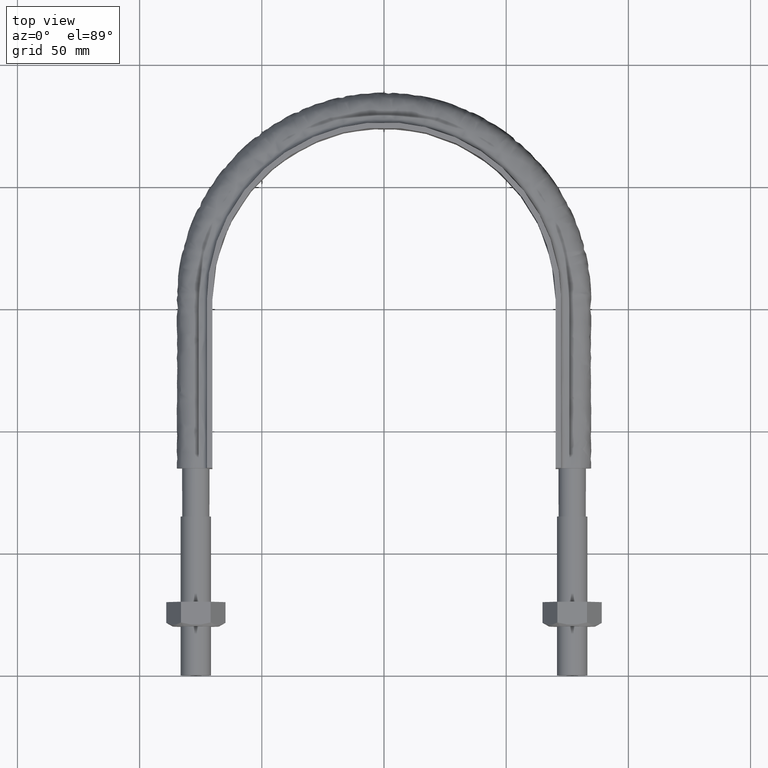
[diagram: clean part render]
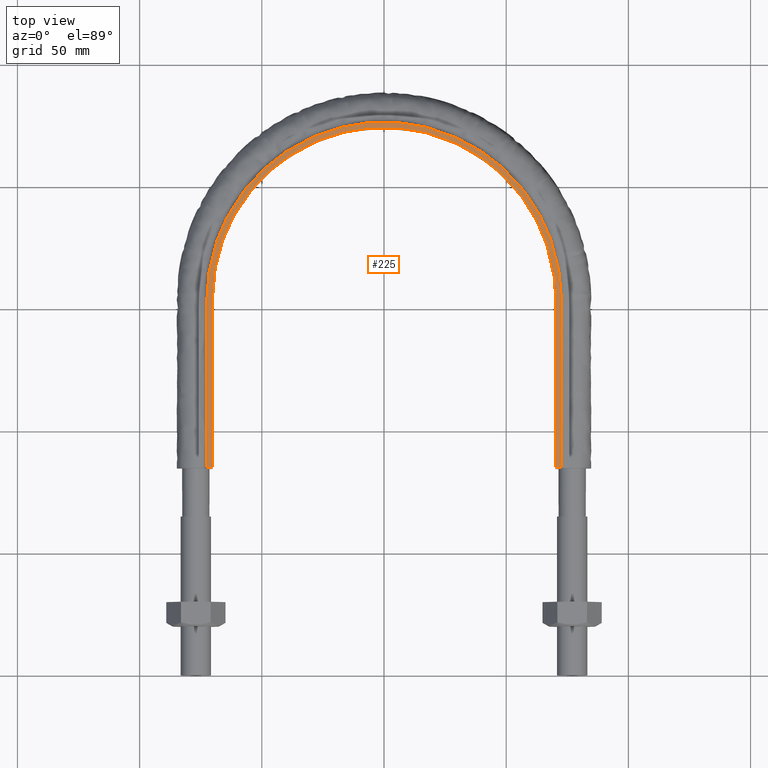
[diagram: same view with one face highlighted and labeled with its STEP entity id]
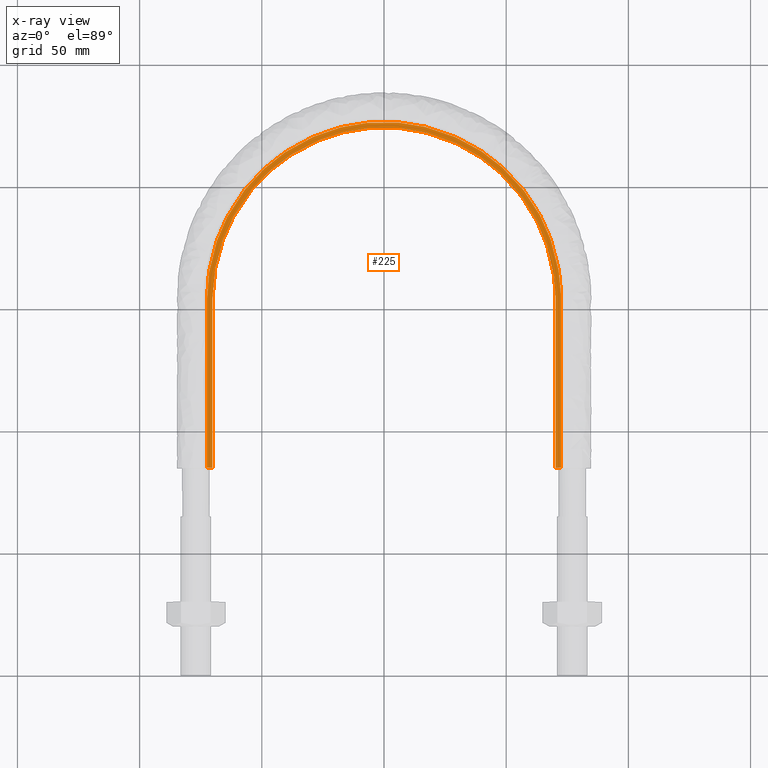
[diagram: x-ray of the same camera — body ghosted, the highlighted face saturated]
A machine part, top view. The second image highlights one B-rep face of the part: STEP entity #225.
The next image is the same camera in x-ray: the body ghosted, the highlighted face saturated — about 0% of this face is hidden behind the body in this view.
In plain terms, the highlighted planar face has unit normal (0, 0, 1).
Its self-contained STEP definition (entity closure, byte-faithful):
#225 = ADVANCED_FACE( '', ( #275 ), #276, .T. );
#275 = FACE_OUTER_BOUND( '', #1048, .T. );
#276 = PLANE( '', #1049 );
#1048 = EDGE_LOOP( '', ( #1360, #1361, #1362, #1363 ) );
#1049 = AXIS2_PLACEMENT_3D( '', #1364, #1365, #1366 );
#1360 = ORIENTED_EDGE( '', *, *, #1600, .T. );
#1361 = ORIENTED_EDGE( '', *, *, #1608, .T. );
#1362 = ORIENTED_EDGE( '', *, *, #1611, .T. );
#1363 = ORIENTED_EDGE( '', *, *, #1612, .F. );
#1364 = CARTESIAN_POINT( '', ( 100.000000000000, 284.710000000000, 15.0000000000000 ) );
#1365 = DIRECTION( '', ( 0.000000000000000, 0.000000000000000, 1.00000000000000 ) );
#1366 = DIRECTION( '', ( 1.00000000000000, 0.000000000000000, 0.000000000000000 ) );
#1600 = EDGE_CURVE( '', #1684, #1682, #1685, .T. );
#1608 = EDGE_CURVE( '', #1682, #1698, #1699, .T. );
#1611 = EDGE_CURVE( '', #1698, #1701, #1703, .T. );
#1612 = EDGE_CURVE( '', #1684, #1701, #1704, .T. );
#1682 = VERTEX_POINT( '', #1830 );
#1684 = VERTEX_POINT( '', #1833 );
#1685 = LINE( '', #1834, #1835 );
#1698 = VERTEX_POINT( '', #1930 );
#1699 = B_SPLINE_CURVE_WITH_KNOTS( '', 3, ( #1931, #1932, #1933, #1934, #1935, #1936, #1937, #1938, #1939, #1940, #1941, #1942, #1943, #1944, #1945, #1946 ), .UNSPECIFIED., .F., .F., ( 4, 3, 1, 1, 1, 1, 1, 1, 3, 4 ), ( -9.00000000000000, -8.00000000000000, -7.00000000000000, -6.00000000000000, -5.00000000000000, -4.00000000000000, -3.00000000000000, -2.00000000000000, -1.00000000000000, 0.000000000000000 ), .UNSPECIFIED. );
#1701 = VERTEX_POINT( '', #1949 );
#1703 = LINE( '', #1981, #1982 );
#1704 = B_SPLINE_CURVE_WITH_KNOTS( '', 3, ( #1983, #1984, #1985, #1986, #1987, #1988, #1989, #1990, #1991, #1992, #1993, #1994, #1995, #1996, #1997, #1998 ), .UNSPECIFIED., .F., .F., ( 4, 3, 1, 1, 1, 1, 1, 1, 3, 4 ), ( -9.00000000000000, -8.00000000000000, -7.00000000000000, -6.00000000000000, -5.00000000000000, -4.00000000000000, -3.00000000000000, -2.00000000000000, -1.00000000000000, 0.000000000000000 ), .UNSPECIFIED. );
#1830 = CARTESIAN_POINT( '', ( -70.2500000000000, 84.7100000000000, 15.0000000000000 ) );
#1833 = CARTESIAN_POINT( '', ( -72.4500000000000, 84.7100000000000, 15.0000000000000 ) );
#1834 = CARTESIAN_POINT( '', ( -100.000000000000, 84.7100000000000, 15.0000000000000 ) );
#1835 = VECTOR( '', #2328, 1000.00000000000 );
#1930 = CARTESIAN_POINT( '', ( 70.2500000000000, 84.7100000000000, 15.0000000000000 ) );
#1931 = CARTESIAN_POINT( '', ( -70.2500000000000, 84.7100000000000, 15.0000000000000 ) );
#1932 = CARTESIAN_POINT( '', ( -70.2500000000000, 107.726666666667, 15.0000000000000 ) );
#1933 = CARTESIAN_POINT( '', ( -70.2500000000000, 130.743333333333, 15.0000000000000 ) );
#1934 = CARTESIAN_POINT( '', ( -70.2500000000000, 153.760000000000, 15.0000000000000 ) );
#1935 = CARTESIAN_POINT( '', ( -70.2500000000000, 164.249418134732, 15.0000000000000 ) );
#1936 = CARTESIAN_POINT( '', ( -65.4537147955432, 185.288971927909, 15.0000000000000 ) );
#1937 = CARTESIAN_POINT( '', ( -45.2953760364684, 210.556467088273, 15.0000000000000 ) );
#1938 = CARTESIAN_POINT( '', ( -16.1657325420394, 224.587129579273, 15.0000000000000 ) );
#1939 = CARTESIAN_POINT( '', ( 16.1657325420395, 224.587129579273, 15.0000000000000 ) );
#1940 = CARTESIAN_POINT( '', ( 45.2953760364684, 210.556467088273, 15.0000000000000 ) );
#1941 = CARTESIAN_POINT( '', ( 65.4537147955432, 185.288971927909, 15.0000000000000 ) );
#1942 = CARTESIAN_POINT( '', ( 70.2500000000000, 164.249418134732, 15.0000000000000 ) );
#1943 = CARTESIAN_POINT( '', ( 70.2500000000000, 153.760000000000, 15.0000000000000 ) );
#1944 = CARTESIAN_POINT( '', ( 70.2500000000000, 130.743333333333, 15.0000000000000 ) );
#1945 = CARTESIAN_POINT( '', ( 70.2500000000000, 107.726666666667, 15.0000000000000 ) );
#1946 = CARTESIAN_POINT( '', ( 70.2500000000000, 84.7100000000000, 15.0000000000000 ) );
#1949 = CARTESIAN_POINT( '', ( 72.4500000000000, 84.7100000000000, 15.0000000000000 ) );
#1981 = CARTESIAN_POINT( '', ( -100.000000000000, 84.7100000000000, 15.0000000000000 ) );
#1982 = VECTOR( '', #2332, 1000.00000000000 );
#1983 = CARTESIAN_POINT( '', ( -72.4500000000000, 84.7100000000000, 15.0000000000000 ) );
#1984 = CARTESIAN_POINT( '', ( -72.4500000000000, 107.726666666667, 15.0000000000000 ) );
#1985 = CARTESIAN_POINT( '', ( -72.4500000000000, 130.743333333333, 15.0000000000000 ) );
#1986 = CARTESIAN_POINT( '', ( -72.4500000000000, 153.760000000000, 15.0000000000000 ) );
#1987 = CARTESIAN_POINT( '', ( -72.4500000000000, 164.584175230504, 15.0000000000000 ) );
#1988 = CARTESIAN_POINT( '', ( -67.5035108460798, 186.273453800089, 15.0000000000000 ) );
#1989 = CARTESIAN_POINT( '', ( -46.7138789159022, 212.335910248336, 15.0000000000000 ) );
#1990 = CARTESIAN_POINT( '', ( -16.6719903583026, 226.805050635421, 15.0000000000000 ) );
#1991 = CARTESIAN_POINT( '', ( 16.6719903583027, 226.805050635421, 15.0000000000000 ) );
#1992 = CARTESIAN_POINT( '', ( 46.7138789159023, 212.335910248336, 15.0000000000000 ) );
#1993 = CARTESIAN_POINT( '', ( 67.5035108460798, 186.273453800089, 15.0000000000000 ) );
#1994 = CARTESIAN_POINT( '', ( 72.4500000000000, 164.584175230504, 15.0000000000000 ) );
#1995 = CARTESIAN_POINT( '', ( 72.4500000000000, 153.760000000000, 15.0000000000000 ) );
#1996 = CARTESIAN_POINT( '', ( 72.4500000000000, 130.743333333333, 15.0000000000000 ) );
#1997 = CARTESIAN_POINT( '', ( 72.4500000000000, 107.726666666667, 15.0000000000000 ) );
#1998 = CARTESIAN_POINT( '', ( 72.4500000000000, 84.7100000000000, 15.0000000000000 ) );
#2328 = DIRECTION( '', ( 1.00000000000000, -1.22460635382238E-016, 0.000000000000000 ) );
#2332 = DIRECTION( '', ( 1.00000000000000, -1.22460635382238E-016, 0.000000000000000 ) );